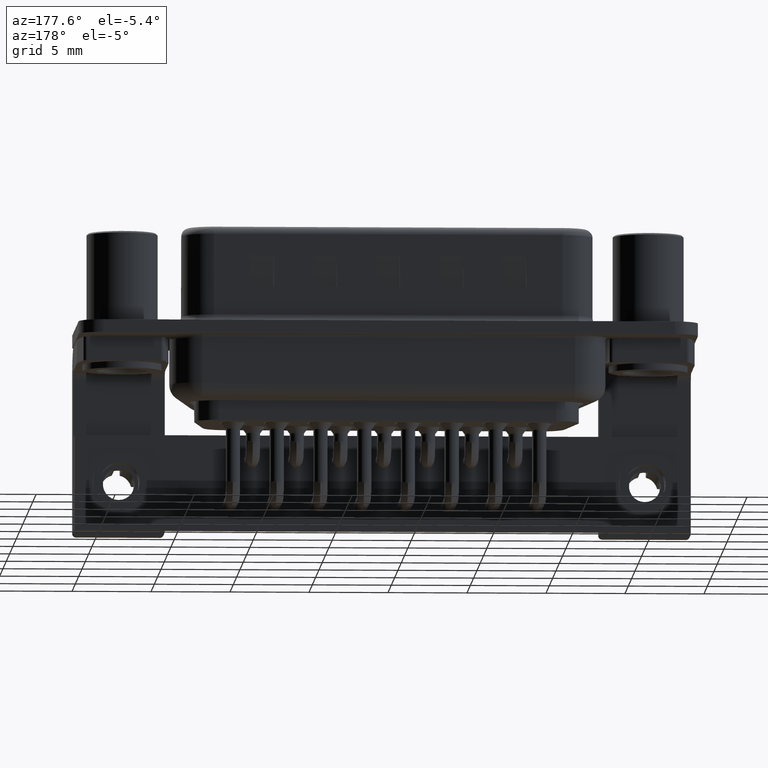
[diagram: clean part render]
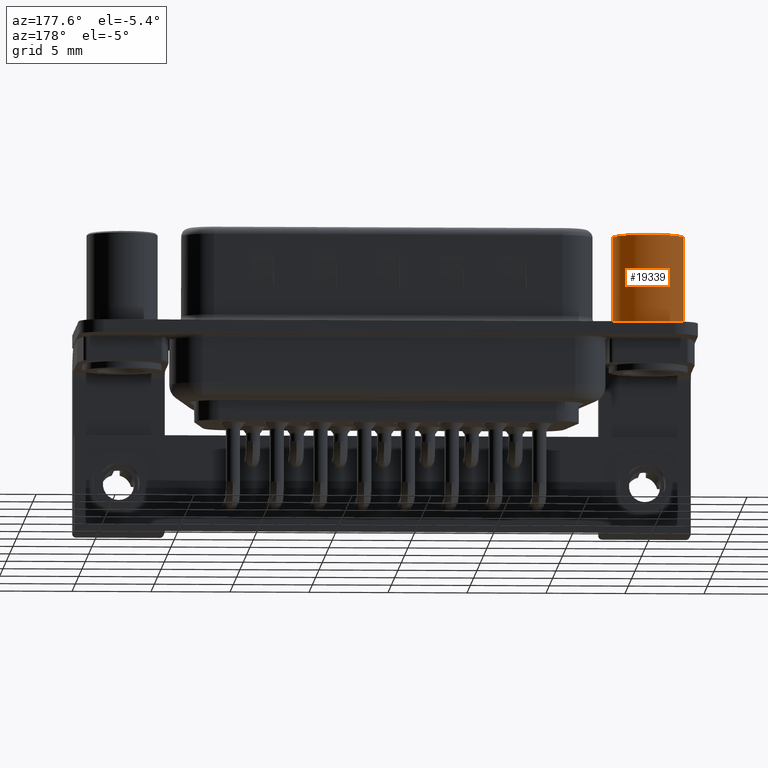
[diagram: same view with one face highlighted and labeled with its STEP entity id]
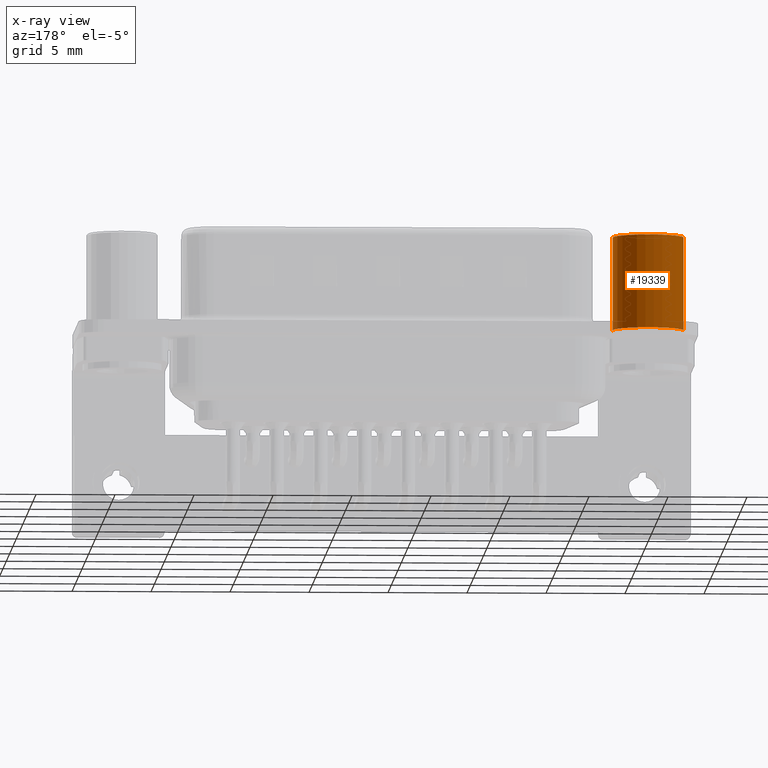
[diagram: x-ray of the same camera — body ghosted, the highlighted face saturated]
A machine part, auxiliary view. The second image highlights one B-rep face of the part: STEP entity #19339.
The next image is the same camera in x-ray: the body ghosted, the highlighted face saturated — about 1% of this face is hidden behind the body in this view.
In plain terms, the highlighted cylindrical surface (edge-blend (fillet) strip) has radius 2.25 mm, axis along (0, 0, 1).
Its self-contained STEP definition (entity closure, byte-faithful):
#684 = VECTOR ( 'NONE', #11978, 1000.000000000000000 ) ;
#1537 = VERTEX_POINT ( 'NONE', #2683 ) ;
#2139 = DIRECTION ( 'NONE',  ( -0.0000000000000000000, -0.0000000000000000000, 1.000000000000000000 ) ) ;
#2683 = CARTESIAN_POINT ( 'NONE',  ( -2.250000000000000000, 2.755455298081544300E-016, 0.4000000000000001900 ) ) ;
#4683 = CARTESIAN_POINT ( 'NONE',  ( 0.0000000000000000000, 0.0000000000000000000, 6.299999999999999800 ) ) ;
#5038 = VERTEX_POINT ( 'NONE', #11121 ) ;
#5464 = CARTESIAN_POINT ( 'NONE',  ( 2.250000000000000000, 2.755455298081544300E-016, 6.299999999999999800 ) ) ;
#5701 = EDGE_LOOP ( 'NONE', ( #7913, #21504, #7719, #23765 ) ) ;
#6363 = DIRECTION ( 'NONE',  ( -0.0000000000000000000, -0.0000000000000000000, 1.000000000000000000 ) ) ;
#6837 = DIRECTION ( 'NONE',  ( 1.000000000000000000, 0.0000000000000000000, 0.0000000000000000000 ) ) ;
#7719 = ORIENTED_EDGE ( 'NONE', *, *, #16389, .F. ) ;
#7913 = ORIENTED_EDGE ( 'NONE', *, *, #11540, .T. ) ;
#10556 = CARTESIAN_POINT ( 'NONE',  ( 0.0000000000000000000, 0.0000000000000000000, 0.5806333143474410300 ) ) ;
#11121 = CARTESIAN_POINT ( 'NONE',  ( 2.250000000000000000, 0.0000000000000000000, 0.4000000000000001900 ) ) ;
#11540 = EDGE_CURVE ( 'NONE', #5038, #1537, #16641, .T. ) ;
#11978 = DIRECTION ( 'NONE',  ( -0.0000000000000000000, -0.0000000000000000000, 1.000000000000000000 ) ) ;
#14316 = AXIS2_PLACEMENT_3D ( 'NONE', #14636, #2139, #16667 ) ;
#14538 = CIRCLE ( 'NONE', #25430, 2.250000000000000000 ) ;
#14636 = CARTESIAN_POINT ( 'NONE',  ( 0.0000000000000000000, 0.0000000000000000000, 0.4000000000000001900 ) ) ;
#16027 = VERTEX_POINT ( 'NONE', #5464 ) ;
#16389 = EDGE_CURVE ( 'NONE', #16027, #23802, #14538, .T. ) ;
#16641 = CIRCLE ( 'NONE', #14316, 2.250000000000000000 ) ;
#16667 = DIRECTION ( 'NONE',  ( 1.000000000000000000, 0.0000000000000000000, 0.0000000000000000000 ) ) ;
#17326 = LINE ( 'NONE', #26534, #684 ) ;
#18787 = DIRECTION ( 'NONE',  ( 1.000000000000000000, 0.0000000000000000000, 0.0000000000000000000 ) ) ;
#19037 = VECTOR ( 'NONE', #26794, 1000.000000000000000 ) ;
#19073 = AXIS2_PLACEMENT_3D ( 'NONE', #10556, #6363, #18787 ) ;
#19149 = DIRECTION ( 'NONE',  ( -0.0000000000000000000, -0.0000000000000000000, 1.000000000000000000 ) ) ;
#19339 = ADVANCED_FACE ( 'NONE', ( #25405 ), #24736, .T. ) ;
#20326 = EDGE_CURVE ( 'NONE', #1537, #23802, #25355, .T. ) ;
#21504 = ORIENTED_EDGE ( 'NONE', *, *, #20326, .T. ) ;
#22352 = EDGE_CURVE ( 'NONE', #5038, #16027, #17326, .T. ) ;
#23765 = ORIENTED_EDGE ( 'NONE', *, *, #22352, .F. ) ;
#23802 = VERTEX_POINT ( 'NONE', #26448 ) ;
#24651 = CARTESIAN_POINT ( 'NONE',  ( -2.250000000000000000, 2.755455298081544300E-016, 0.5806333143474410300 ) ) ;
#24736 = CYLINDRICAL_SURFACE ( 'NONE', #19073, 2.250000000000000000 ) ;
#25355 = LINE ( 'NONE', #24651, #19037 ) ;
#25405 = FACE_OUTER_BOUND ( 'NONE', #5701, .T. ) ;
#25430 = AXIS2_PLACEMENT_3D ( 'NONE', #4683, #19149, #6837 ) ;
#26448 = CARTESIAN_POINT ( 'NONE',  ( -2.250000000000000000, 0.0000000000000000000, 6.299999999999999800 ) ) ;
#26534 = CARTESIAN_POINT ( 'NONE',  ( 2.250000000000000000, 0.0000000000000000000, 0.5806333143474410300 ) ) ;
#26794 = DIRECTION ( 'NONE',  ( -0.0000000000000000000, -0.0000000000000000000, 1.000000000000000000 ) ) ;